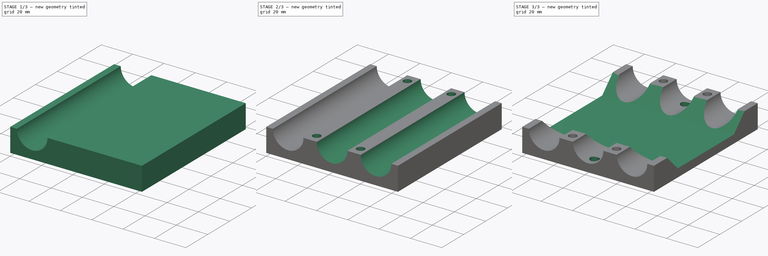
[diagram: build sequence overview — one tinted view per stage of 3, left to right]
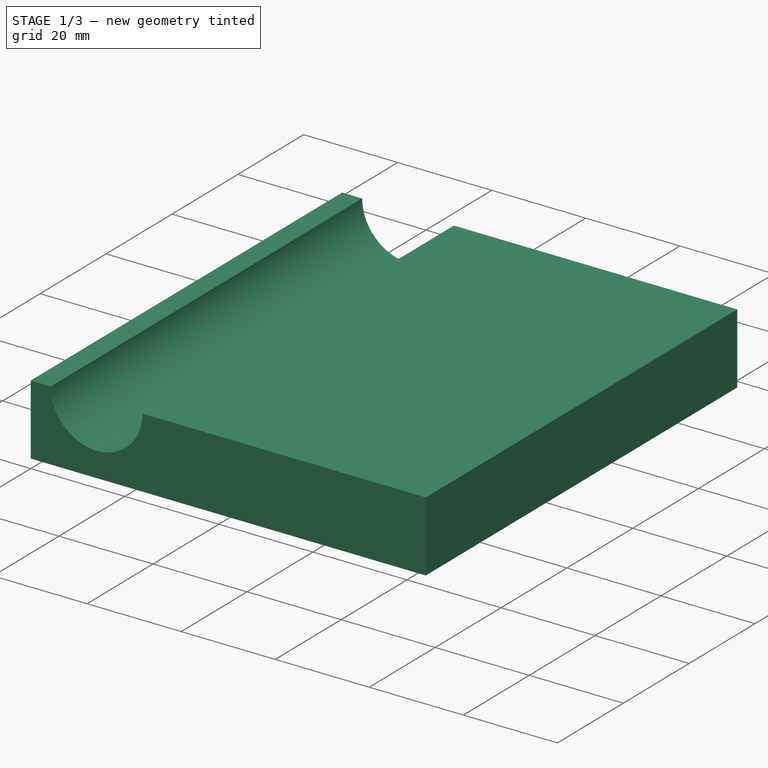
[diagram: stage 1 of 3 — iso view after this stage's code; geometry added in this stage tinted green]
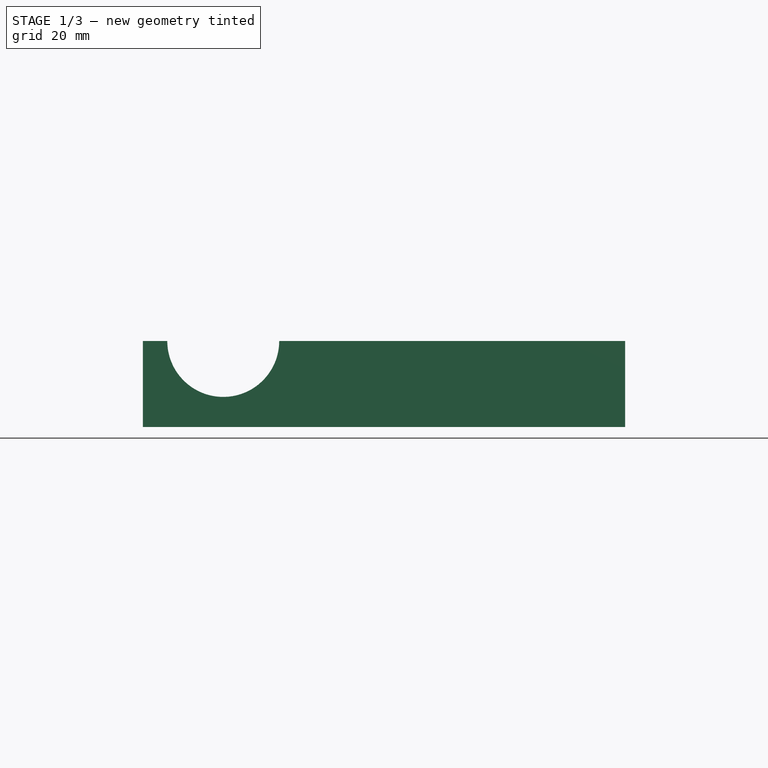
[diagram: stage 1 of 3 — front view after this stage's code; geometry added in this stage tinted green]
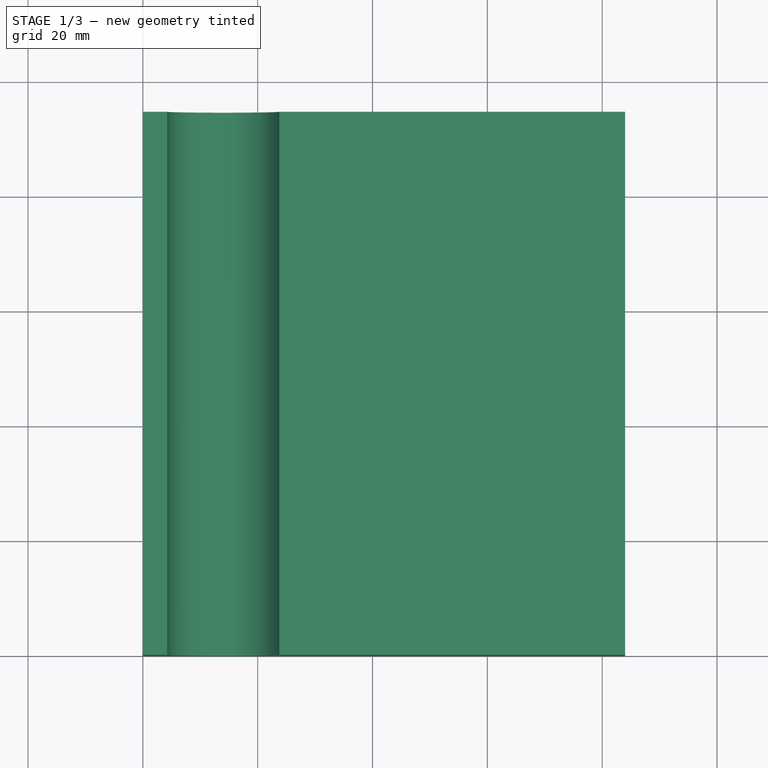
[diagram: stage 1 of 3 — top view after this stage's code; geometry added in this stage tinted green]
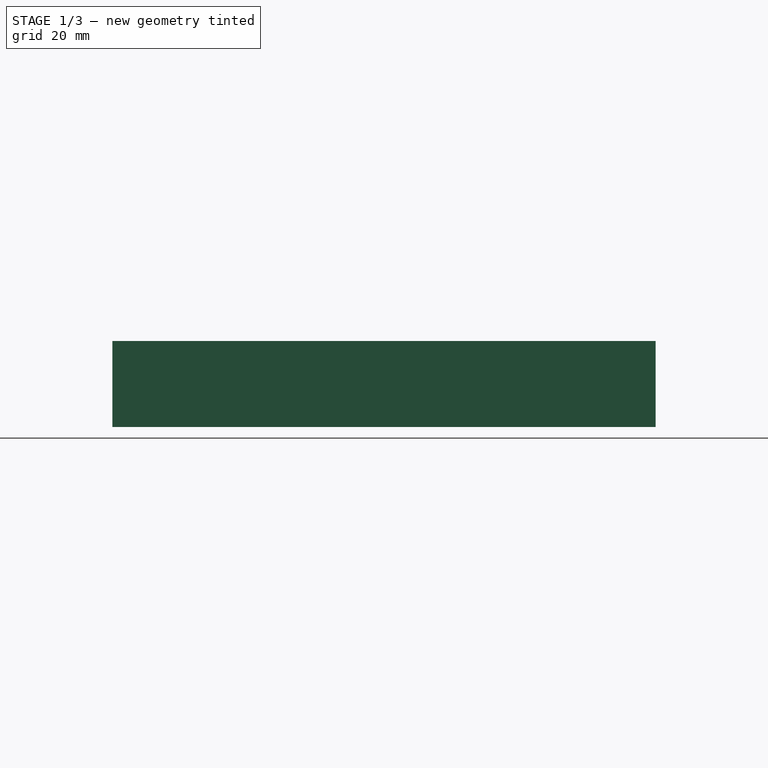
[diagram: stage 1 of 3 — right view after this stage's code; geometry added in this stage tinted green]
FCSTD DOCUMENT  (FreeCAD 1.0R39319 (Git))
Label: pipeholder_centralbox
License: All rights reserved
LicenseURL: https://en.wikipedia.org/wiki/All_rights_reserved
objects: Sketcher::SketchObject×5, PartDesign::Pocket×3, PartDesign::Plane×2, Spreadsheet::Sheet×1, PartDesign::Pad×1, PartDesign::LinearPattern×1, PartDesign::Hole×1, PartDesign::Body×1
note: 30 computed .brp shape members not serialized (recipe doc carries the construction recipe); baked Part::Feature solids carry a one-line shape summary decoded from their .brp

FEATURE [Spreadsheet::Sheet] Spreadsheet
  cells = A1='Holder Depth; B1(HolderDep)=12; C1='PipeCount; D1(PipeCnt)=3; E1='Screw diameter; F1(ScrewDia)=5; G1='Insert spacing; H1(InsertSpa)=82.6; A2='Holder height; B2(HolderHei)=15; C2='Pipe diameter; D2(PipeDia)=19.5; E2='Countersunk; F2(ScrewSun)=11; G2='Insert dia; H2(InsertDia)=5.6; C3='Pipe pitch; D3(PipePitch)=28; C4='Pipe center offset; D4(PipeCentreOff)=0; A7='Calculations; C7='Pipe origin; D7(PipeCentrePosY)==HolderHei + PipeCentreOff; E7='Screw X; F7(ScrewX)==PipePitch; G7='Insert Y; H7(InsertPosY)==HolderDep / 2; A8='Holder Width; B8(HolderWid)==PipePitch * PipeCnt; E8='Screw Y; F8(ScrewY)==HolderDep / 2; G8='Insert X; H8==HolderWid / 2; A9='Holder depth total; B9(HolderTotalDep)==HolderDep + InsertSpa; E9='Screw Count; F9(ScrewCnt)==PipeCnt - 1; A10='Holder Cutout wall; B10(HolderCutoutThi)==HolderHei - PipeDia / 2
FEATURE [Sketcher::SketchObject] Sketch
  ArcFitTolerance = 1e-06
  AttachmentSupport = -> [XY_Plane]
  FullyConstrained = true
  MakeInternals = false
  MapMode = 5
  expr: Constraints[10] = Spreadsheet.HolderWid
  expr: Constraints[9] = Spreadsheet.HolderTotalDep
  sketch-geometry (4):
    g0: LineSegment StartX=0 StartY=0 StartZ=0 EndX=84 EndY=0 EndZ=0
    g1: LineSegment StartX=84 StartY=0 StartZ=0 EndX=84 EndY=94.6 EndZ=0
    g2: LineSegment StartX=84 StartY=94.6 StartZ=0 EndX=0 EndY=94.6 EndZ=0
    g3: LineSegment StartX=0 StartY=94.6 StartZ=0 EndX=0 EndY=0 EndZ=0
  constraints (11):
    c: Coincident(g0,g1)
    c: Coincident(g1,g2)
    c: Coincident(g2,g3)
    c: Coincident(g3,g0)
    c: Horizontal(g0)
    c: Horizontal(g2)
    c: Vertical(g1)
    c: Vertical(g3)
    c: Coincident(g0,g-1)
    c: DistanceY(g3,g3) = 94.6
    c: DistanceX(g0,g0) = 84
FEATURE [PartDesign::Pad] Pad  label="MainBody"
  Direction = (0,0,1)
  Length = 15
  Length2 = 10
  Profile = -> Sketch
  ReferenceAxis = -> Sketch [N_Axis]
  Refine = true
  Suppressed = false
  Type = 0
  expr: Length = Spreadsheet.HolderHei
FEATURE [PartDesign::Plane] DatumPlane  label="Front"
  AttachmentSupport = -> [XZ_Plane]
  Length = 123.765
  MapMode = 5
  Placement = pos=(0,0,0) rot=(1,0,0;1.5708rad)
  ResizeMode = 0
  Width = 64.7648
FEATURE [Sketcher::SketchObject] Sketch001
  ArcFitTolerance = 1e-06
  AttachmentSupport = -> [DatumPlane]
  FullyConstrained = true
  MakeInternals = false
  MapMode = 5
  Placement = pos=(0,0,0) rot=(1,0,0;1.5708rad)
  expr: Constraints[0] = Spreadsheet.PipeDia
  expr: Constraints[1] = Spreadsheet.HolderHei
  expr: Constraints[2] = Spreadsheet.PipePitch / 2
  sketch-geometry (1):
    g0: Circle CenterX=14 CenterY=15 CenterZ=0 NormalX=0 NormalY=0 NormalZ=1 AngleXU=0 Radius=9.75
  constraints (3):
    c: Diameter(g0) = 19.5
    c: DistanceY(g-1,g0) = 15
    c: DistanceX(g-1,g0) = 14
FEATURE [PartDesign::Pocket] Pocket  label="PipeCut"
  BaseFeature = -> Pad
  Direction = (0,1,-2e-16)
  Length = 5
  Length2 = 5
  Profile = -> Sketch001
  ReferenceAxis = -> Sketch001 [N_Axis]
  Refine = true
  Suppressed = false
  Type = 1
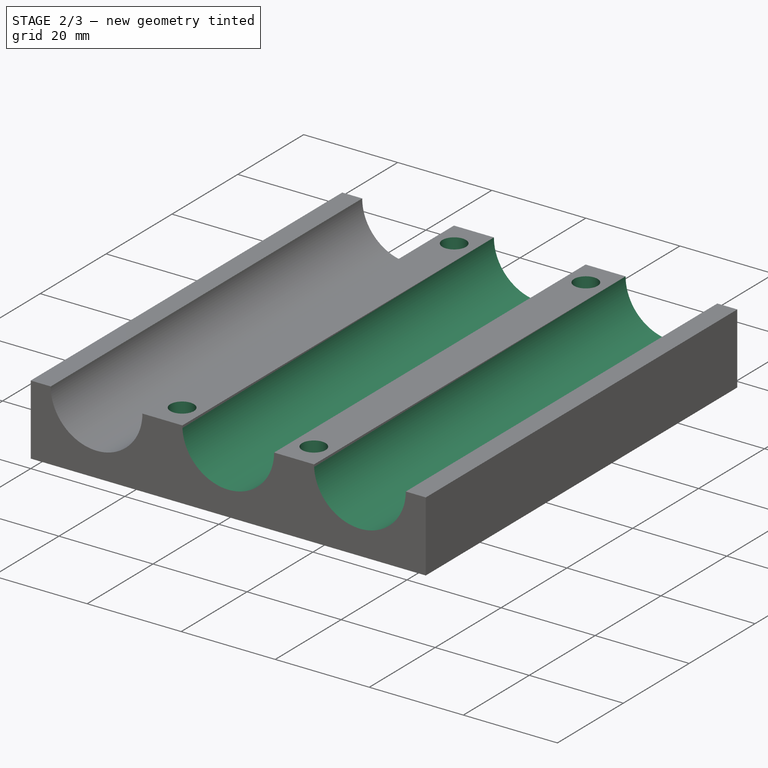
[diagram: stage 2 of 3 — iso view after this stage's code; geometry added in this stage tinted green]
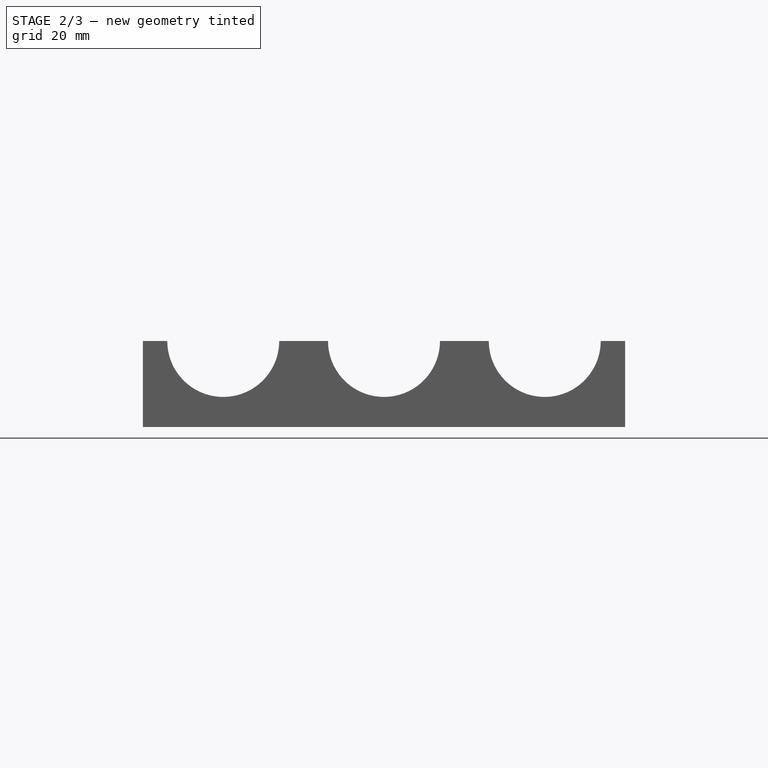
[diagram: stage 2 of 3 — front view after this stage's code; geometry added in this stage tinted green]
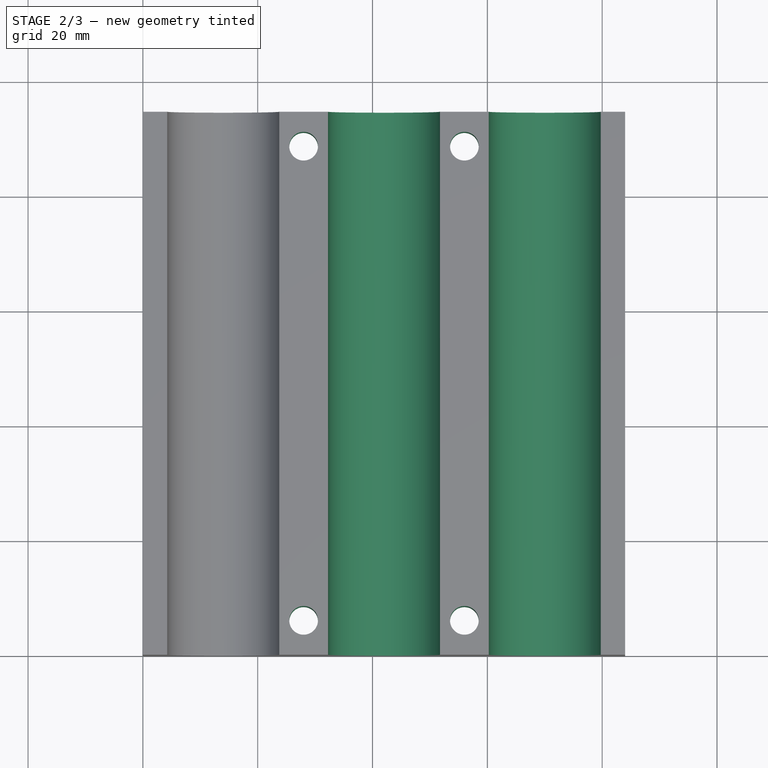
[diagram: stage 2 of 3 — top view after this stage's code; geometry added in this stage tinted green]
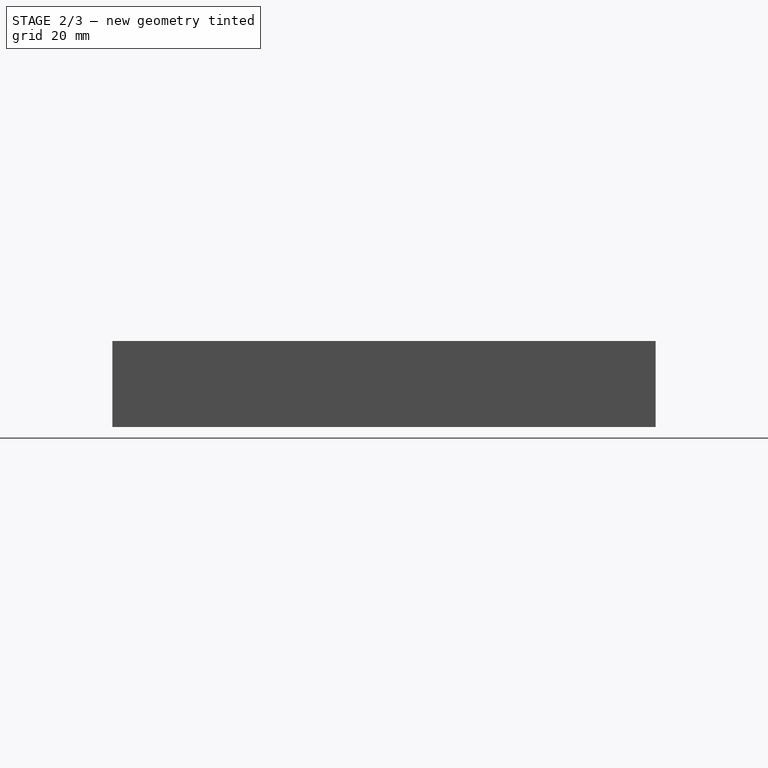
[diagram: stage 2 of 3 — right view after this stage's code; geometry added in this stage tinted green]
FEATURE [PartDesign::LinearPattern] LinearPattern  label="PipeCuts"
  BaseFeature = -> Pocket
  Direction = -> Sketch001 [H_Axis]
  Length = 56
  Mode = 1
  Occurrences = 3
  Offset = 28
  Originals = -> [Pocket]
  Refine = true
  Suppressed = false
  TransformMode = 0
  expr: Occurrences = Spreadsheet.PipeCnt
  expr: Offset = Spreadsheet.PipePitch
FEATURE [Sketcher::SketchObject] Sketch002
  ArcFitTolerance = 1e-06
  AttachmentSupport = -> [XY_Plane]
  FullyConstrained = true
  MakeInternals = false
  MapMode = 5
  expr: Constraints[0] = Spreadsheet.HolderTotalDep / 2
  expr: Constraints[12] = Spreadsheet.PipePitch
  expr: Constraints[13] = Spreadsheet.InsertSpa
  expr: Constraints[1] = Spreadsheet.HolderWid / 2
  sketch-geometry (6):
    g0: GeomPoint [constr] X=42 Y=47.3 Z=0
    g1: Circle CenterX=28 CenterY=6 CenterZ=0 NormalX=0 NormalY=0 NormalZ=1 AngleXU=0 Radius=0.5
    g2: Circle CenterX=56 CenterY=6 CenterZ=0 NormalX=0 NormalY=0 NormalZ=1 AngleXU=0 Radius=0.5
    g3: Circle CenterX=28 CenterY=88.6 CenterZ=0 NormalX=0 NormalY=0 NormalZ=1 AngleXU=0 Radius=0.5
    g4: Circle CenterX=56 CenterY=88.6 CenterZ=0 NormalX=0 NormalY=0 NormalZ=1 AngleXU=0 Radius=0.5
    g5: LineSegment [constr] StartX=42 StartY=47.3 StartZ=0 EndX=42 EndY=0 EndZ=0
  constraints (14):
    c: DistanceY(g-1,g0) = 47.3
    c: DistanceX(g-1,g0) = 42
    c: Diameter(g1) = 1
    c: Equal(g1,g2)
    c: Equal(g1,g3)
    c: Equal(g1,g4)
    c: Symmetric(g4,g1,g0)
    c: Symmetric(g3,g2,g0)
    c: Horizontal(g1,g2)
    c: Coincident(g5,g0)
    c: Horizontal(g5,g-1)
    c: Symmetric(g2,g1,g5)
    c: DistanceX(g1,g2) = 28
    c: DistanceY(g1,g3) = 82.6
FEATURE [PartDesign::Hole] Hole  label="ScrewHoles"
  BaseFeature = -> LinearPattern
  CustomThreadClearance = 0
  Depth = 25
  DepthType = 0
  Diameter = 5
  DrillForDepth = false
  DrillPoint = 1
  DrillPointAngle = 118
  HoleCutCountersinkAngle = 90
  HoleCutCustomValues = false
  HoleCutDepth = 0
  HoleCutDiameter = 11
  HoleCutType = 2
  ModelThread = false
  Profile = -> Sketch002
  Refine = true
  Reversed = true
  Suppressed = false
  Tapered = false
  TaperedAngle = 90
  ThreadClass = 0
  ThreadDepth = 25
  ThreadDepthType = 0
  ThreadDirection = 0
  ThreadFit = 0
  ThreadSize = 0
  ThreadType = 0
  Threaded = false
  UseCustomThreadClearance = false
  expr: Diameter = Spreadsheet.ScrewDia
  expr: HoleCutDiameter = Spreadsheet.ScrewSun
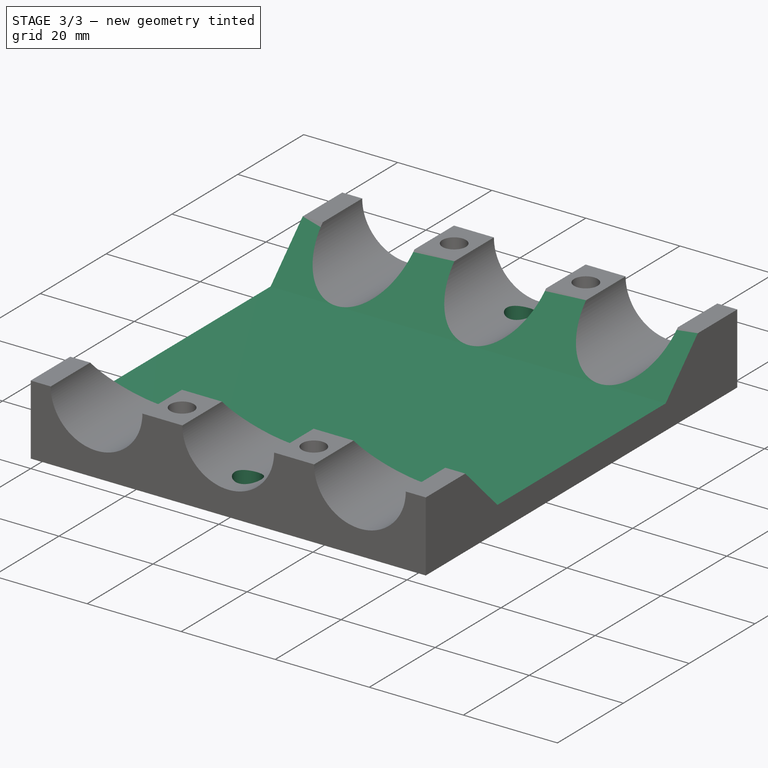
[diagram: stage 3 of 3 — iso view after this stage's code; geometry added in this stage tinted green]
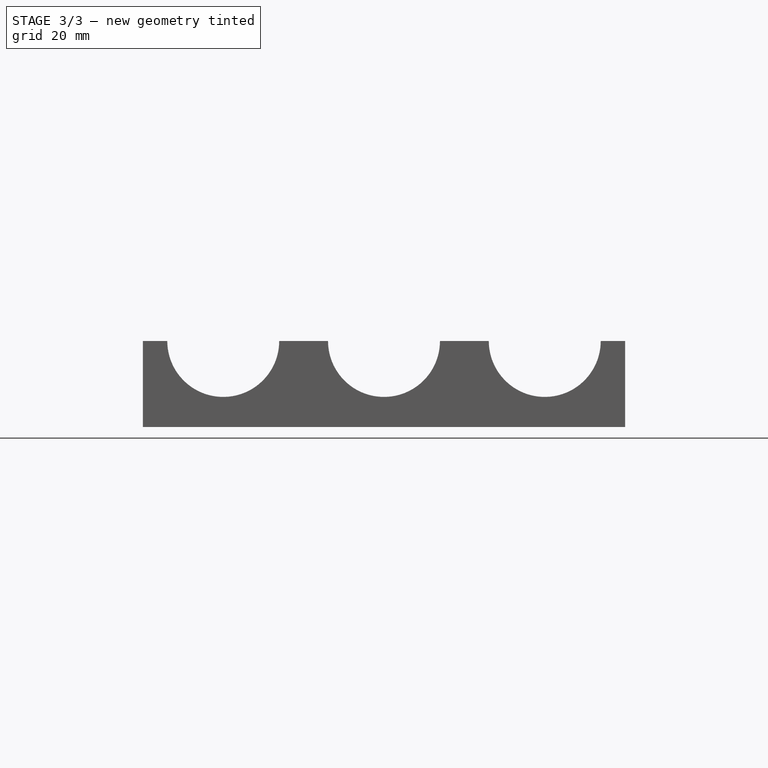
[diagram: stage 3 of 3 — front view after this stage's code; geometry added in this stage tinted green]
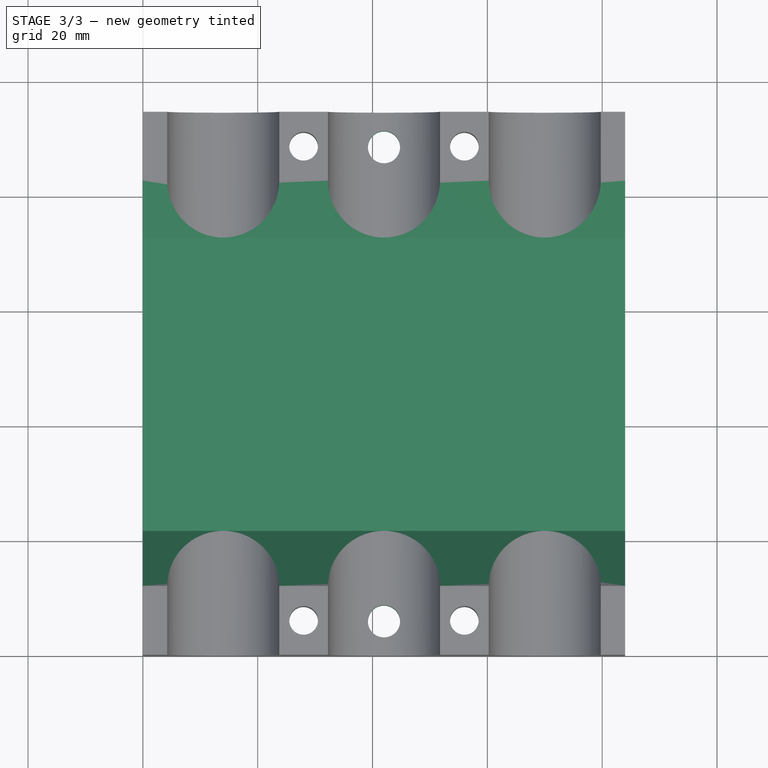
[diagram: stage 3 of 3 — top view after this stage's code; geometry added in this stage tinted green]
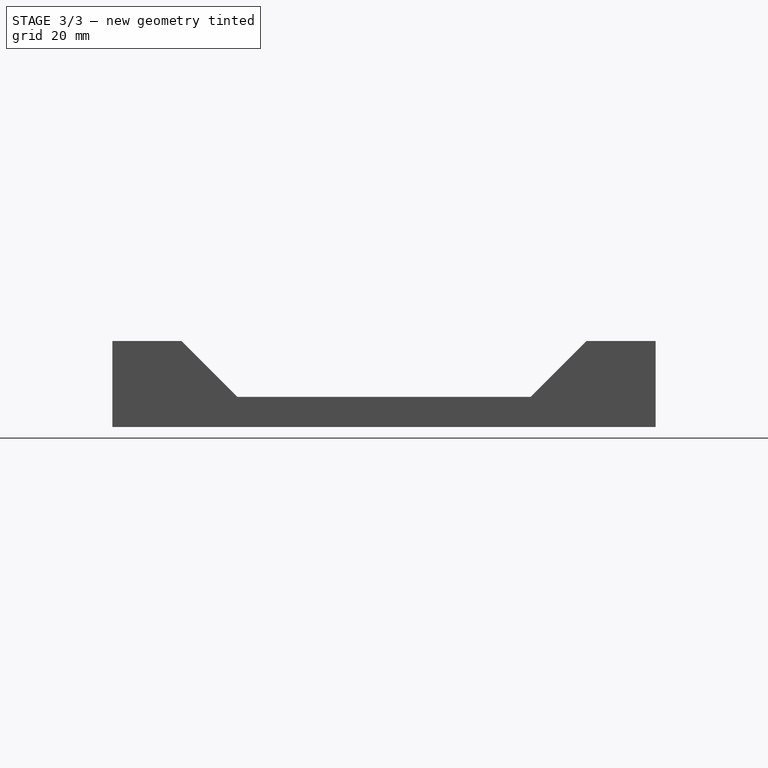
[diagram: stage 3 of 3 — right view after this stage's code; geometry added in this stage tinted green]
FEATURE [Sketcher::SketchObject] Sketch003
  ArcFitTolerance = 1e-06
  AttachmentSupport = -> [XY_Plane]
  FullyConstrained = true
  MakeInternals = false
  MapMode = 5
  expr: Constraints[0] = Spreadsheet.HolderTotalDep / 2
  expr: Constraints[1] = Spreadsheet.HolderWid / 2
  expr: Constraints[2] = Spreadsheet.InsertDia
  expr: Constraints[6] = Spreadsheet.InsertSpa
  sketch-geometry (3):
    g0: GeomPoint [constr] X=42 Y=47.3 Z=0
    g1: Circle CenterX=42 CenterY=88.6 CenterZ=0 NormalX=0 NormalY=0 NormalZ=1 AngleXU=0 Radius=2.8
    g2: Circle CenterX=42 CenterY=6 CenterZ=0 NormalX=0 NormalY=0 NormalZ=1 AngleXU=0 Radius=2.8
  constraints (7):
    c: DistanceY(g-1,g0) = 47.3
    c: DistanceX(g-1,g0) = 42
    c: Diameter(g2) = 5.6
    c: Equal(g2,g1)
    c: Symmetric(g2,g1,g0)
    c: Vertical(g2,g0)
    c: DistanceY(g2,g1) = 82.6
FEATURE [PartDesign::Pocket] Pocket001  label="InsertHolders"
  BaseFeature = -> Hole
  Direction = (0,0,-1)
  Length = 5
  Length2 = 5
  Profile = -> Sketch003
  ReferenceAxis = -> Sketch003 [N_Axis]
  Refine = true
  Reversed = true
  Suppressed = false
  Type = 1
FEATURE [PartDesign::Plane] DatumPlane001  label="Left"
  AttachmentSupport = -> [YZ_Plane]
  Length = 135.066
  MapMode = 5
  Placement = pos=(0,0,0) rot=(0.57735,0.57735,0.57735;2.0944rad)
  ResizeMode = 0
  Width = 65.4661
FEATURE [Sketcher::SketchObject] Sketch004
  ArcFitTolerance = 1e-06
  AttachmentSupport = -> [DatumPlane001]
  FullyConstrained = true
  MakeInternals = false
  MapMode = 5
  Placement = pos=(0,0,0) rot=(0.57735,0.57735,0.57735;2.0944rad)
  expr: Constraints[2] = Spreadsheet.HolderHei
  expr: Constraints[3] = Spreadsheet.HolderDep
  expr: Constraints[4] = Spreadsheet.InsertSpa - Spreadsheet.HolderDep
  expr: Constraints[5] = Spreadsheet.HolderCutoutThi
  sketch-geometry (4):
    g0: LineSegment StartX=82.6 StartY=15 StartZ=0 EndX=12 EndY=15 EndZ=0
    g1: LineSegment StartX=12 StartY=15 StartZ=0 EndX=21.75 EndY=5.25 EndZ=0
    g2: LineSegment StartX=21.75 StartY=5.25 StartZ=0 EndX=72.85 EndY=5.25 EndZ=0
    g3: LineSegment StartX=72.85 StartY=5.25 StartZ=0 EndX=82.6 EndY=15 EndZ=0
  constraints (12):
    c: Horizontal(g0)
    c: Horizontal(g2)
    c: DistanceY(g-1,g0) = 15
    c: DistanceX(g-1,g0) = 12
    c: DistanceX(g0,g0) = 70.6
    c: DistanceY(g-1,g2) = 5.25
    c: Coincident(g1,g0)
    c: Angle(g1,g0) = 0.785398
    c: Coincident(g1,g2)
    c: Coincident(g3,g0)
    c: Angle(g0,g3) = 0.785398
    c: Coincident(g2,g3)
FEATURE [PartDesign::Pocket] Pocket002  label="Cutout"
  BaseFeature = -> Pocket001
  Direction = (-1,0,0)
  Length = 5
  Length2 = 5
  Profile = -> Sketch004
  ReferenceAxis = -> Sketch004 [N_Axis]
  Refine = true
  Reversed = true
  Suppressed = false
  Type = 1
FEATURE [PartDesign::Body] Body
  AllowCompound = false
  Group = -> [Sketch,Pad,DatumPlane,DatumPlane001,Sketch001,Pocket,LinearPattern,Sketch002,Hole,Sketch003,Pocket001,Sketch004,Pocket002]
  Origin = -> Origin
  Tip = -> Pocket002
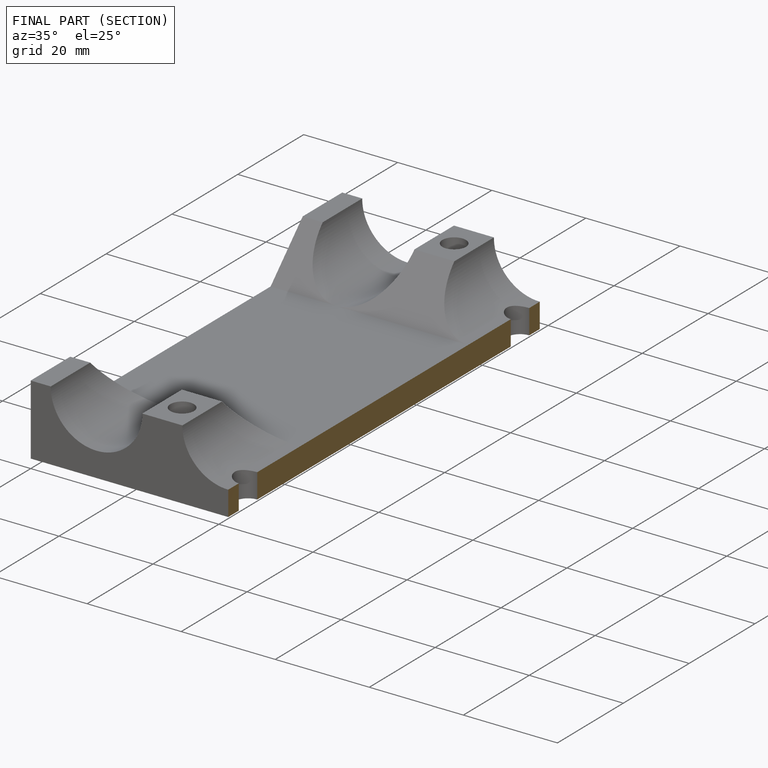
[diagram: finished part — half-section view (interior)]
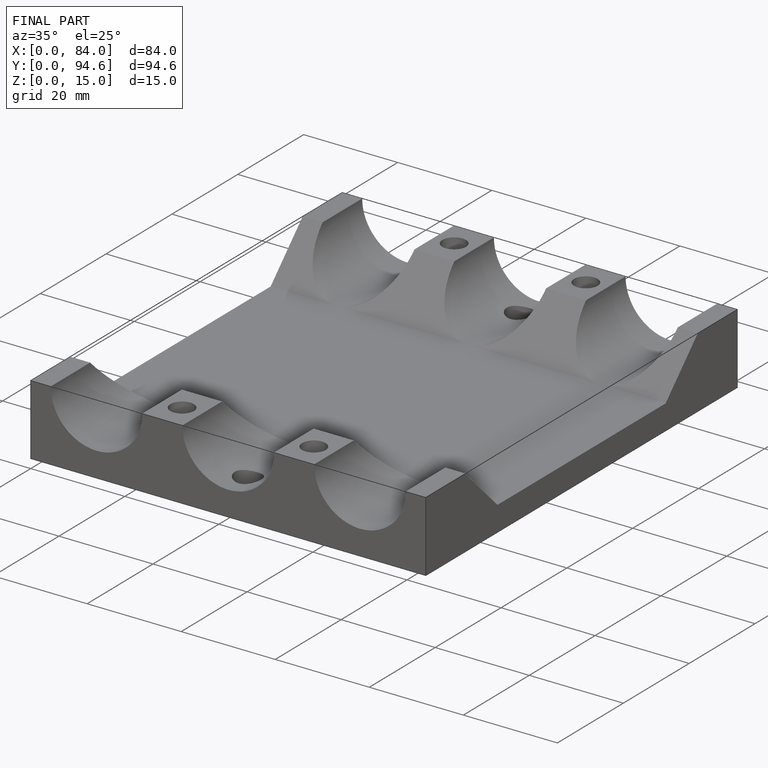
[diagram: finished part — iso view with bounding-box wireframe]
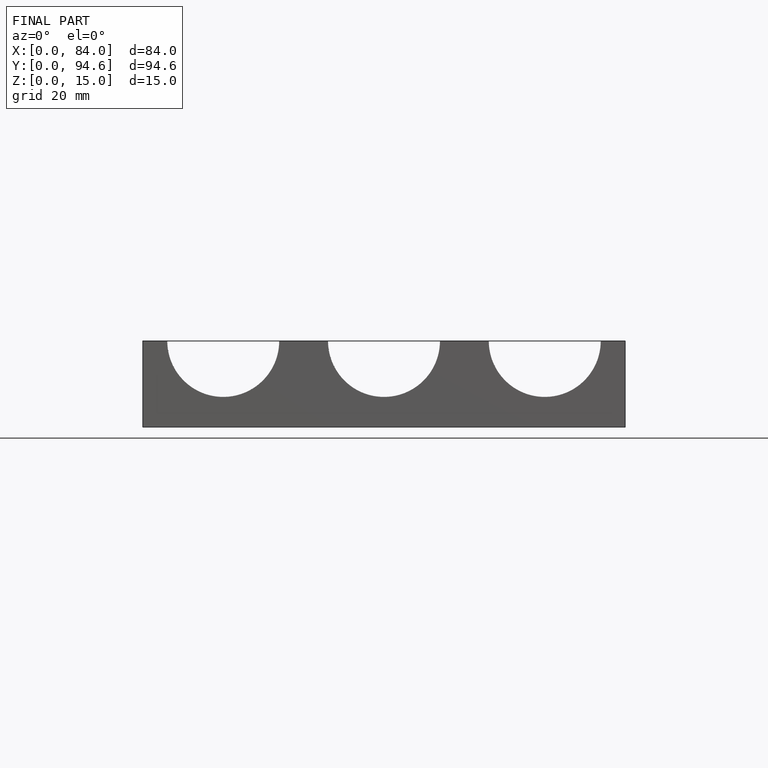
[diagram: finished part — front view with bounding-box wireframe]
